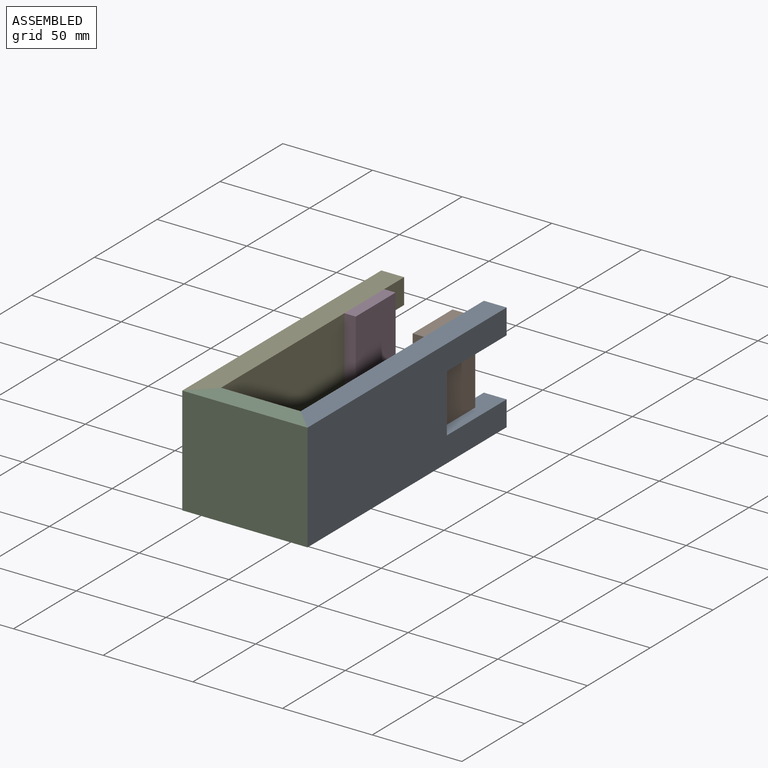
[diagram: assembled view]
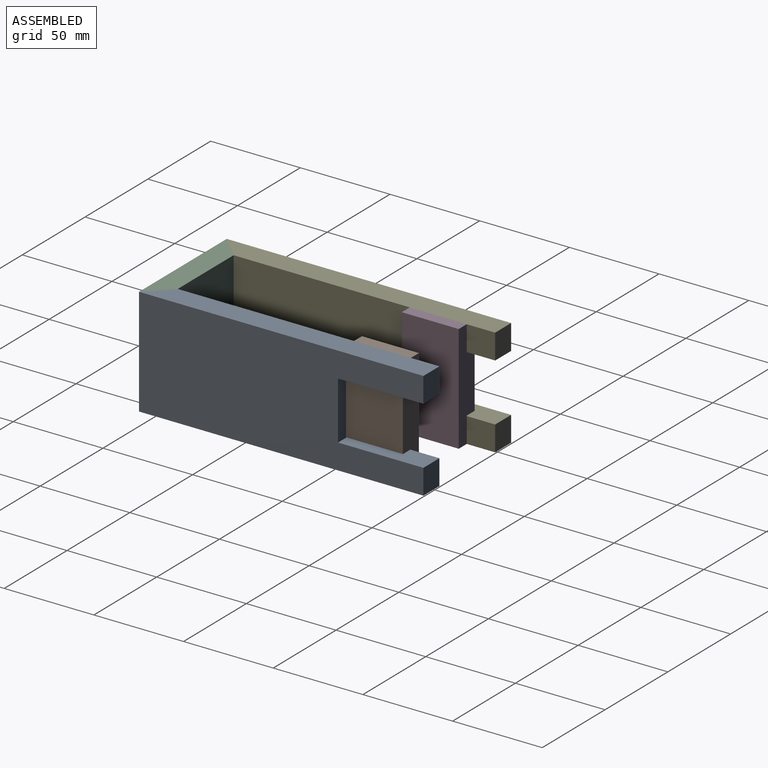
[diagram: assembled view, second angle]
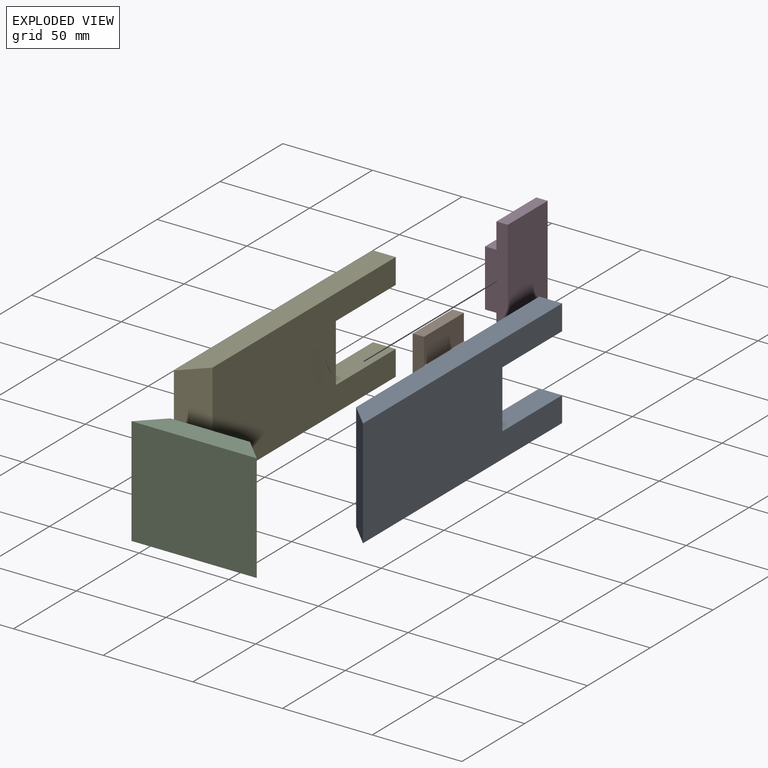
[diagram: exploded view]
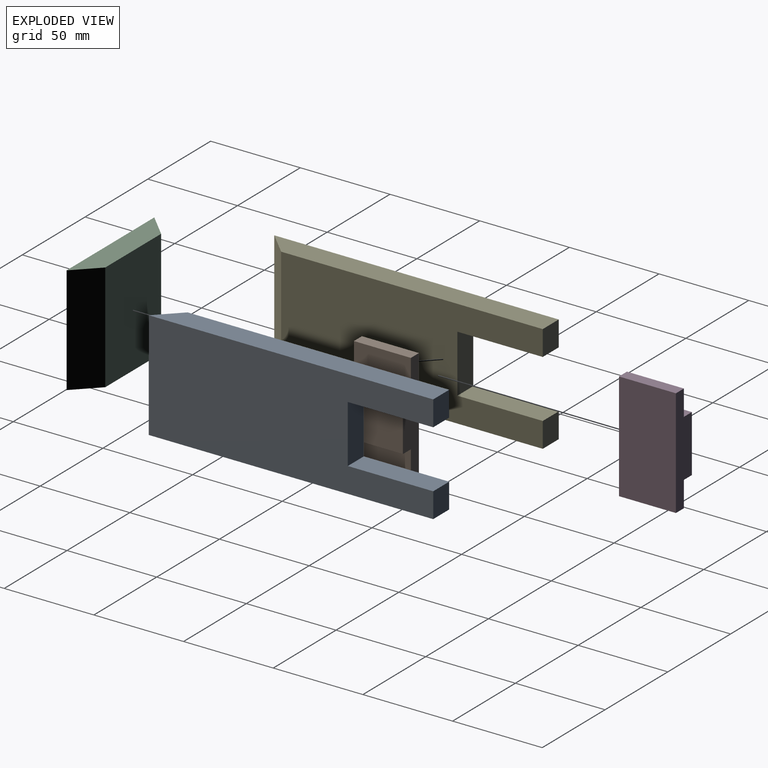
[diagram: exploded view, second angle]
ASSEMBLY  parts=5 mates=4
PART A: 12 faces, bbox 158.6x60.3x12.7 mm
  f0: plane 145.87x60.33mm, normal (0,0,1), area 7263.9mm2, adj f1,f2,f3,f4,f5,f7,f8,f9
  f1: plane 158.57x12.7mm, normal (0,-1,0), area 1933.2mm2, adj f0,f5,f6,f7
  f2: plane 158.57x12.7mm, normal (0,1,0), area 1933.2mm2, adj f0,f3,f6,f7
  f3: plane 14.04x12.7mm, normal (-1,0,0), area 178.3mm2, adj f0,f2,f6,f8
  f4: plane 31.76x12.71mm, normal (-1,0,0), area 403.2mm2, adj f0,f6,f9,f11
  f5: plane 14.04x12.7mm, normal (-1,0,0), area 178.3mm2, adj f0,f1,f6,f10
  f6: plane 158.57x60.33mm, normal (0,0,-1), area 8030.1mm2, adj f1,f2,f3,f4,f5,f7,f8,f9
  f7: plane 60.33x12.7mm, normal (0.71,0,0.71), area 1083.6mm2, adj f0,f1,f2,f6
  f8: plane 47.63x12.7mm, normal (0,-1,0), area 604.8mm2, adj f0,f3,f6,f9
  f9: plane 12.71x0.26mm, normal (-1,0,0), area 3.2mm2, adj f0,f4,f6,f8
  f10: plane 47.63x12.7mm, normal (0,1,0), area 604.8mm2, adj f0,f5,f6,f11
  f11: plane 12.71x0.26mm, normal (-1,0,0), area 3.2mm2, adj f0,f4,f6,f10
PART B: 10 faces, bbox 60.3x31.8x12.7 mm
  f0: plane 31.75x14.29mm, normal (0,0,1), area 453.7mm2, adj f1,f3,f4,f8
  f1: plane 60.33x12.7mm, normal (0,-1,0), area 584.7mm2, adj f0,f2,f4,f5,f6,f7,f8,f9
  f2: plane 31.75x6.35mm, normal (1,0,0), area 201.6mm2, adj f1,f3,f5,f6
  f3: plane 60.33x12.7mm, normal (0,1,0), area 584.7mm2, adj f0,f2,f4,f5,f6,f7,f8,f9
  f4: plane 31.75x6.35mm, normal (-1,0,0), area 201.6mm2, adj f0,f1,f3,f6
  f5: plane 31.75x14.29mm, normal (0,0,1), area 453.7mm2, adj f1,f2,f3,f7
  f6: plane 60.33x31.75mm, normal (0,0,-1), area 1915.5mm2, adj f1,f2,f3,f4
  f7: plane 31.75x6.35mm, normal (1,0,0), area 201.6mm2, adj f1,f3,f5,f9
  f8: plane 31.75x6.35mm, normal (-1,0,0), area 201.6mm2, adj f0,f1,f3,f9
  f9: plane 31.75x31.75mm, normal (0,0,1), area 1008.1mm2, adj f1,f3,f7,f8
PART C: 6 faces, bbox 69.9x12.7x60.3 mm
  f0: plane 69.85x12.7mm, normal (0,0,1), area 725.8mm2, adj f1,f3,f4,f5
  f1: plane 60.33x44.45mm, normal (0,1,0), area 2681.7mm2, adj f0,f2,f4,f5
  f2: plane 69.85x12.7mm, normal (0,0,-1), area 725.8mm2, adj f1,f3,f4,f5
  f3: plane 69.85x60.33mm, normal (0,-1,0), area 4214.1mm2, adj f0,f2,f4,f5
  f4: plane 60.33x12.7mm, normal (0.71,0.71,0), area 1083.6mm2, adj f0,f1,f2,f3
  f5: plane 60.33x12.7mm, normal (-0.71,0.71,0), area 1083.6mm2, adj f0,f1,f2,f3
PART D: same geometry as B
PART E: same geometry as A
PLACE A rot(axis=(0.58,-0.58,-0.58),120deg) t=(-87.05,152.78,-82.58)mm
PLACE B rot(axis=(0,1,0),90deg) t=(-106.1,105.15,-22.25)mm
PLACE C t=(-156.9,6.91,-82.58)mm
PLACE D rot(axis=(0,-1,0),90deg) t=(-137.85,105.15,-82.58)mm
PLACE E rot(axis=(-0.58,0.58,-0.58),120deg) t=(-156.9,152.78,-22.25)mm
MATE fastened C.f4 <-> A.f7  axis (0.71,0.71,0) through (-93.4,0.56,-52.42)mm
MATE fastened B.f1 <-> A.f4  axis (0,-1,0) through (-99.75,105.15,-36.54)mm
MATE fastened E.f7 <-> C.f5  axis (0.71,-0.71,0) through (-150.55,0.56,-52.42)mm
MATE fastened D.f1 <-> E.f4  axis (0,-1,0) through (-144.2,105.15,-68.29)mm
